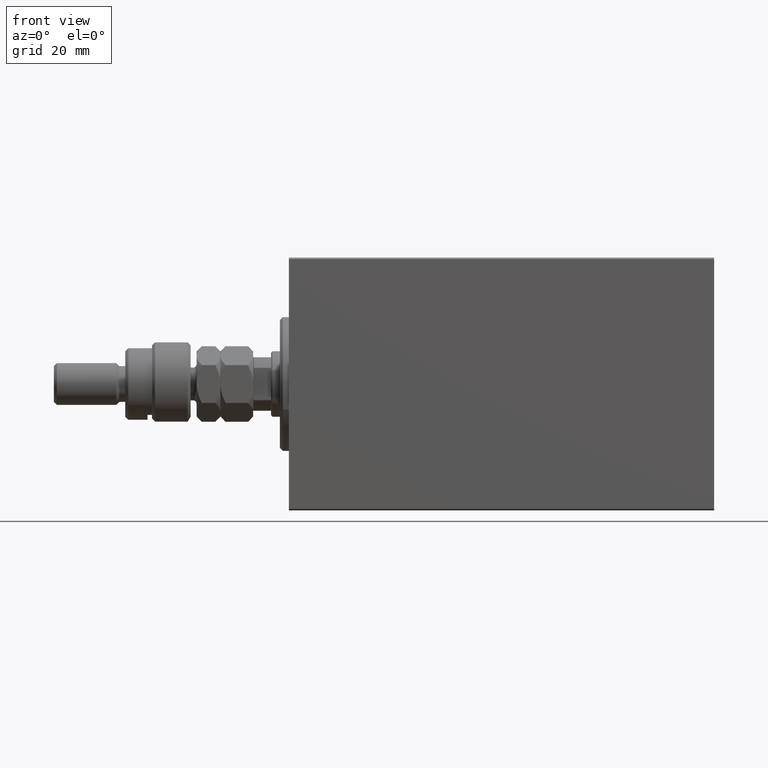
[diagram: clean part render]
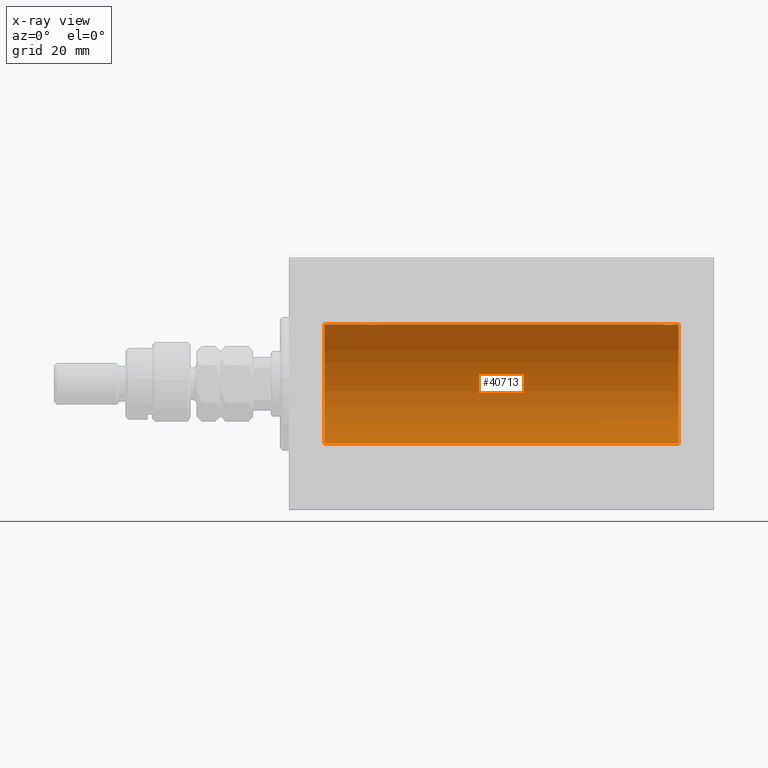
[diagram: x-ray — body ghosted, one internal face saturated and labeled with its STEP entity id]
A machine part, front view, then the same camera in x-ray: the body is ghosted and one INTERNAL B-rep face — a face not visible from any outside direction — is saturated and labeled: STEP entity #40713.
In plain terms, the highlighted cylindrical surface (partial cylindrical patch) has radius 20 mm, axis along (-1, -0, -0).
Its self-contained STEP definition (entity closure, byte-faithful):
#255 = AXIS2_PLACEMENT_3D ( 'NONE', #19203, #26536, #41206 ) ;
#351 = CARTESIAN_POINT ( 'NONE',  ( 129.0905973345755626, 1.219458756546266898, 19.96308513509966787 ) ) ;
#580 = CARTESIAN_POINT ( 'NONE',  ( 126.9810052581388788, 1.935912154109689531, 19.90610216711451130 ) ) ;
#694 = CARTESIAN_POINT ( 'NONE',  ( 26.56426851132708222, 0.5196544277756667274, 19.99365919015135873 ) ) ;
#822 = CARTESIAN_POINT ( 'NONE',  ( 129.5000000000000000, 6.438096668033870730E-15, 20.00000000000000000 ) ) ;
#3084 = CARTESIAN_POINT ( 'NONE',  ( 11.99999999999999645, 0.000000000000000000, 20.00000000000000000 ) ) ;
#3136 = VECTOR ( 'NONE', #40217, 1000.000000000000000 ) ;
#4014 = CARTESIAN_POINT ( 'NONE',  ( 28.76180153897438174, 1.999905101582716727, 19.89975827978156531 ) ) ;
#4127 = CARTESIAN_POINT ( 'NONE',  ( 127.2375858217999820, 1.987020435121064965, 19.90106552791689154 ) ) ;
#4219 = B_SPLINE_CURVE_WITH_KNOTS ( 'NONE', 3,
 ( #14451, #31985, #28431, #28897, #43330, #45949, #26023, #22248, #39998, #29579, #26262, #29815, #4014, #18698, #40228, #26500, #40468, #18934, #44256, #33129, #11579, #14676, #12056, #32675, #40932, #4476, #694, #11821, #8505, #29116 ),
 .UNSPECIFIED., .F., .F.,
 ( 4, 2, 2, 2, 2, 2, 2, 2, 2, 2, 2, 2, 2, 2, 4 ),
 ( 1.491064056086547960E-18, 0.0003910512220831125949, 0.0007821024441662236719, 0.001173153666249334695, 0.001564204888332445826, 0.002346307332498667655, 0.003128409776664889917, 0.003519460998748006036, 0.003910512220831123022, 0.004301563442914238707, 0.004692614664997354391, 0.005083665887080470944, 0.005474717109163585761, 0.005865768331246702313, 0.006256819553329818866 ),
 .UNSPECIFIED. ) ;
#4476 = CARTESIAN_POINT ( 'NONE',  ( 26.60210312641135033, 0.6443418861413088283, 19.98998539619404724 ) ) ;
#4836 = CARTESIAN_POINT ( 'NONE',  ( 126.6140381054416366, 1.797847595792759323, 19.91909332229798224 ) ) ;
#4846 = CARTESIAN_POINT ( 'NONE',  ( 131.0000000000000000, 0.000000000000000000, 20.00000000000000000 ) ) ;
#5313 = CARTESIAN_POINT ( 'NONE',  ( 125.5000000000000000, -1.553188236289650144E-23, 20.00000000000000000 ) ) ;
#6888 = CARTESIAN_POINT ( 'NONE',  ( 131.0000000000000000, 2.449293598294706513E-15, -20.00000000000000000 ) ) ;
#7386 = CARTESIAN_POINT ( 'NONE',  ( 11.99999999999999645, 2.449293598294706513E-15, -20.00000000000000000 ) ) ;
#7461 = VERTEX_POINT ( 'NONE', #17296 ) ;
#7899 = EDGE_CURVE ( 'NONE', #8626, #7461, #40796, .T. ) ;
#7919 = CARTESIAN_POINT ( 'NONE',  ( 125.9099293231032419, 1.220099331833881973, 19.96304379627741099 ) ) ;
#8277 = VERTEX_POINT ( 'NONE', #33167 ) ;
#8505 = CARTESIAN_POINT ( 'NONE',  ( 26.50000000000000711, 0.1305706983324430859, 20.00000000000000355 ) ) ;
#8626 = VERTEX_POINT ( 'NONE', #10128 ) ;
#9511 = VECTOR ( 'NONE', #29442, 1000.000000000000000 ) ;
#10128 = CARTESIAN_POINT ( 'NONE',  ( 125.5000000000000000, -1.553188236289650144E-23, 20.00000000000000000 ) ) ;
#10279 = EDGE_CURVE ( 'NONE', #15298, #8626, #26328, .T. ) ;
#11007 = CARTESIAN_POINT ( 'NONE',  ( 129.4999999999999432, 0.1322335637814731624, 19.99999999999999645 ) ) ;
#11236 = CARTESIAN_POINT ( 'NONE',  ( 129.2357636512789725, 1.002099838626312023, 19.97517568592526516 ) ) ;
#11436 = ORIENTED_EDGE ( 'NONE', *, *, #34342, .T. ) ;
#11579 = CARTESIAN_POINT ( 'NONE',  ( 27.17939834916166575, 1.507796451871720844, 19.94330239452387943 ) ) ;
#11821 = CARTESIAN_POINT ( 'NONE',  ( 26.51308707988552982, 0.2631998640366418063, 19.99867931558985745 ) ) ;
#11934 = CARTESIAN_POINT ( 'NONE',  ( 128.7295011223063170, 1.598854313793174997, 19.93684595445884611 ) ) ;
#12056 = CARTESIAN_POINT ( 'NONE',  ( 26.90992932310326680, 1.220099331833893963, 19.96304379627741099 ) ) ;
#14451 = CARTESIAN_POINT ( 'NONE',  ( 30.50000000000000000, -9.453669475664189070E-16, 20.00000000000000000 ) ) ;
#14676 = CARTESIAN_POINT ( 'NONE',  ( 26.99261358456011806, 1.321069663197663724, 19.95654117037012298 ) ) ;
#15031 = CARTESIAN_POINT ( 'NONE',  ( 125.9926135845601323, 1.321069663197669497, 19.95654117037011943 ) ) ;
#15298 = VERTEX_POINT ( 'NONE', #36654 ) ;
#17296 = CARTESIAN_POINT ( 'NONE',  ( 30.50000000000000000, -9.453669475664189070E-16, 20.00000000000000000 ) ) ;
#18356 = CARTESIAN_POINT ( 'NONE',  ( 129.4361522838333087, 0.5179893069484673429, 19.99370013622814923 ) ) ;
#18584 = CARTESIAN_POINT ( 'NONE',  ( 126.4970277321504568, 1.735228749583813679, 19.92471474456649005 ) ) ;
#18698 = CARTESIAN_POINT ( 'NONE',  ( 28.37018818709294266, 2.000047251570880924, 19.89974399317116038 ) ) ;
#18934 = CARTESIAN_POINT ( 'NONE',  ( 27.61403810544162951, 1.797847595792757769, 19.91909332229799290 ) ) ;
#19013 = VERTEX_POINT ( 'NONE', #19136 ) ;
#19136 = CARTESIAN_POINT ( 'NONE',  ( 131.0000000000000000, 0.000000000000000000, 20.00000000000000000 ) ) ;
#19153 = DIRECTION ( 'NONE',  ( -1.000000000000000000, -0.000000000000000000, -0.000000000000000000 ) ) ;
#19203 = CARTESIAN_POINT ( 'NONE',  ( 131.0000000000000000, 0.000000000000000000, 0.000000000000000000 ) ) ;
#20741 = VECTOR ( 'NONE', #19153, 1000.000000000000000 ) ;
#21556 = AXIS2_PLACEMENT_3D ( 'NONE', #28434, #43793, #42872 ) ;
#22130 = CARTESIAN_POINT ( 'NONE',  ( 128.0251390845499770, 1.947330458682945409, 19.90522393307485061 ) ) ;
#22248 = CARTESIAN_POINT ( 'NONE',  ( 30.09059733457551999, 1.219458756546268674, 19.96308513509966787 ) ) ;
#22367 = CARTESIAN_POINT ( 'NONE',  ( 126.8562886936015275, 1.898109641280497417, 19.90978941500366872 ) ) ;
#22598 = CARTESIAN_POINT ( 'NONE',  ( 127.3701881870929213, 2.000047251570877371, 19.89974399317116038 ) ) ;
#22703 = LINE ( 'NONE', #37130, #20741 ) ;
#22837 = CARTESIAN_POINT ( 'NONE',  ( 125.6021031264113503, 0.6443418861413128251, 19.98998539619404724 ) ) ;
#22847 = LINE ( 'NONE', #4846, #44019 ) ;
#22982 = CARTESIAN_POINT ( 'NONE',  ( 11.99999999999999645, 0.000000000000000000, 0.000000000000000000 ) ) ;
#23313 = DIRECTION ( 'NONE',  ( -1.000000000000000000, -0.000000000000000000, -0.000000000000000000 ) ) ;
#23987 = ORIENTED_EDGE ( 'NONE', *, *, #28851, .T. ) ;
#24101 = VERTEX_POINT ( 'NONE', #6888 ) ;
#25683 = CARTESIAN_POINT ( 'NONE',  ( 129.0061577038071334, 1.322305185229299740, 19.95645382900617548 ) ) ;
#26023 = CARTESIAN_POINT ( 'NONE',  ( 30.23576365127895471, 1.002099838626313133, 19.97517568592526516 ) ) ;
#26262 = CARTESIAN_POINT ( 'NONE',  ( 29.50645759073829666, 1.747830109444738822, 19.92373272380676852 ) ) ;
#26328 = B_SPLINE_CURVE_WITH_KNOTS ( 'NONE', 3,
 ( #822, #11007, #39888, #18356, #32784, #44374, #11236, #351, #25683, #11934, #43912, #22130, #29700, #22598, #4127, #580, #22367, #4836, #18584, #26379, #33020, #15031, #7919, #36801, #40818, #22837, #37268, #45547, #45082, #5313 ),
 .UNSPECIFIED., .F., .F.,
 ( 4, 2, 2, 2, 2, 2, 2, 2, 2, 2, 2, 2, 2, 2, 4 ),
 ( 6.256030733202064911E-18, 0.0003910512220831412178, 0.0007821024441662762557, 0.001173153666249411239, 0.001564204888332546223, 0.002346307332498815974, 0.003128409776665085941, 0.003519460998748179508, 0.003910512220831273075, 0.004301563442914366209, 0.004692614664997459342, 0.005083665887080552476, 0.005474717109163646477, 0.005865768331246739610, 0.006256819553329832743 ),
 .UNSPECIFIED. ) ;
#26379 = CARTESIAN_POINT ( 'NONE',  ( 126.2803972465025879, 1.590453176650897360, 19.93679350243184700 ) ) ;
#26398 = ORIENTED_EDGE ( 'NONE', *, *, #31620, .F. ) ;
#26500 = CARTESIAN_POINT ( 'NONE',  ( 27.98100525813890371, 1.935912154109691308, 19.90610216711450775 ) ) ;
#26536 = DIRECTION ( 'NONE',  ( -1.000000000000000000, -0.000000000000000000, -0.000000000000000000 ) ) ;
#26582 = VERTEX_POINT ( 'NONE', #7386 ) ;
#26591 = ORIENTED_EDGE ( 'NONE', *, *, #44118, .F. ) ;
#27413 = ORIENTED_EDGE ( 'NONE', *, *, #7899, .T. ) ;
#28431 = CARTESIAN_POINT ( 'NONE',  ( 30.48701494615325203, 0.2622407139811110399, 19.99868965376114716 ) ) ;
#28434 = CARTESIAN_POINT ( 'NONE',  ( 131.0000000000000000, 0.000000000000000000, 0.000000000000000000 ) ) ;
#28851 = EDGE_CURVE ( 'NONE', #43118, #26582, #42343, .T. ) ;
#28897 = CARTESIAN_POINT ( 'NONE',  ( 30.43615228383326610, 0.5179893069484617918, 19.99370013622814213 ) ) ;
#29116 = CARTESIAN_POINT ( 'NONE',  ( 26.50000000000000355, -1.552596590610734385E-23, 20.00000000000000000 ) ) ;
#29430 = ORIENTED_EDGE ( 'NONE', *, *, #42392, .T. ) ;
#29442 = DIRECTION ( 'NONE',  ( -1.000000000000000000, -0.000000000000000000, -0.000000000000000000 ) ) ;
#29579 = CARTESIAN_POINT ( 'NONE',  ( 29.72950112230633124, 1.598854313793179660, 19.93684595445884256 ) ) ;
#29700 = CARTESIAN_POINT ( 'NONE',  ( 127.7618015389743960, 1.999905101582715172, 19.89975827978156886 ) ) ;
#29771 = EDGE_LOOP ( 'NONE', ( #26398, #26591, #29430, #42201, #27413, #43805, #11436, #23987 ) ) ;
#29815 = CARTESIAN_POINT ( 'NONE',  ( 29.02513908454999125, 1.947330458682948739, 19.90522393307485061 ) ) ;
#29913 = CARTESIAN_POINT ( 'NONE',  ( 131.0000000000000000, 0.000000000000000000, 20.00000000000000000 ) ) ;
#30283 = CARTESIAN_POINT ( 'NONE',  ( 131.0000000000000000, 2.449293598294706513E-15, -20.00000000000000000 ) ) ;
#31620 = EDGE_CURVE ( 'NONE', #24101, #26582, #44945, .T. ) ;
#31985 = CARTESIAN_POINT ( 'NONE',  ( 30.49999999999998934, 0.1322335637814726905, 19.99999999999999645 ) ) ;
#32675 = CARTESIAN_POINT ( 'NONE',  ( 26.76510545398016205, 1.003547732426802286, 19.97510079925437765 ) ) ;
#32784 = CARTESIAN_POINT ( 'NONE',  ( 129.3976511316607798, 0.6450624715427597522, 19.98996196681220994 ) ) ;
#33020 = CARTESIAN_POINT ( 'NONE',  ( 126.1793983491617013, 1.507796451871725063, 19.94330239452387588 ) ) ;
#33129 = CARTESIAN_POINT ( 'NONE',  ( 27.28039724650257014, 1.590453176650910017, 19.93679350243183990 ) ) ;
#33167 = CARTESIAN_POINT ( 'NONE',  ( 26.50000000000000355, -1.552596590610734385E-23, 20.00000000000000000 ) ) ;
#34342 = EDGE_CURVE ( 'NONE', #8277, #43118, #22847, .T. ) ;
#36654 = CARTESIAN_POINT ( 'NONE',  ( 129.5000000000000000, 6.438096668033870730E-15, 20.00000000000000000 ) ) ;
#36801 = CARTESIAN_POINT ( 'NONE',  ( 125.7651054539801407, 1.003547732426790073, 19.97510079925437410 ) ) ;
#36820 = EDGE_CURVE ( 'NONE', #7461, #8277, #4219, .T. ) ;
#37130 = CARTESIAN_POINT ( 'NONE',  ( 131.0000000000000000, 0.000000000000000000, 20.00000000000000000 ) ) ;
#37268 = CARTESIAN_POINT ( 'NONE',  ( 125.5642685113271000, 0.5196544277756655061, 19.99365919015135518 ) ) ;
#37422 = FACE_OUTER_BOUND ( 'NONE', #29771, .T. ) ;
#39888 = CARTESIAN_POINT ( 'NONE',  ( 129.4870149461532378, 0.2622407139811161469, 19.99868965376115071 ) ) ;
#39998 = CARTESIAN_POINT ( 'NONE',  ( 30.00615770380712988, 1.322305185229305735, 19.95645382900617548 ) ) ;
#40031 = DIRECTION ( 'NONE',  ( 0.000000000000000000, 0.000000000000000000, 1.000000000000000000 ) ) ;
#40066 = AXIS2_PLACEMENT_3D ( 'NONE', #22982, #40498, #40031 ) ;
#40217 = DIRECTION ( 'NONE',  ( -1.000000000000000000, -0.000000000000000000, -0.000000000000000000 ) ) ;
#40228 = CARTESIAN_POINT ( 'NONE',  ( 28.23758582179998911, 1.987020435121066742, 19.90106552791689509 ) ) ;
#40468 = CARTESIAN_POINT ( 'NONE',  ( 27.85628869360149906, 1.898109641280498083, 19.90978941500367583 ) ) ;
#40498 = DIRECTION ( 'NONE',  ( -1.000000000000000000, 0.000000000000000000, 0.000000000000000000 ) ) ;
#40503 = CYLINDRICAL_SURFACE ( 'NONE', #255, 20.00000000000000000 ) ;
#40713 = ADVANCED_FACE ( 'NONE', ( #37422 ), #40503, .F. ) ;
#40796 = LINE ( 'NONE', #29913, #9511 ) ;
#40818 = CARTESIAN_POINT ( 'NONE',  ( 125.7024609887283901, 0.8865903856744312694, 19.98070694681039328 ) ) ;
#40932 = CARTESIAN_POINT ( 'NONE',  ( 26.70246098872837592, 0.8865903856744279388, 19.98070694681038972 ) ) ;
#41206 = DIRECTION ( 'NONE',  ( 0.000000000000000000, 0.000000000000000000, 1.000000000000000000 ) ) ;
#42201 = ORIENTED_EDGE ( 'NONE', *, *, #10279, .T. ) ;
#42343 = CIRCLE ( 'NONE', #40066, 20.00000000000000000 ) ;
#42392 = EDGE_CURVE ( 'NONE', #19013, #15298, #22703, .T. ) ;
#42872 = DIRECTION ( 'NONE',  ( 0.000000000000000000, 0.000000000000000000, 1.000000000000000000 ) ) ;
#43118 = VERTEX_POINT ( 'NONE', #3084 ) ;
#43330 = CARTESIAN_POINT ( 'NONE',  ( 30.39765113166074073, 0.6450624715427593081, 19.98996196681220283 ) ) ;
#43479 = CIRCLE ( 'NONE', #21556, 20.00000000000000000 ) ;
#43793 = DIRECTION ( 'NONE',  ( -1.000000000000000000, 0.000000000000000000, 0.000000000000000000 ) ) ;
#43805 = ORIENTED_EDGE ( 'NONE', *, *, #36820, .T. ) ;
#43912 = CARTESIAN_POINT ( 'NONE',  ( 128.5064575907383357, 1.747830109444734159, 19.92373272380677207 ) ) ;
#44019 = VECTOR ( 'NONE', #23313, 1000.000000000000000 ) ;
#44118 = EDGE_CURVE ( 'NONE', #19013, #24101, #43479, .T. ) ;
#44256 = CARTESIAN_POINT ( 'NONE',  ( 27.49702773215046392, 1.735228749583825225, 19.92471474456649005 ) ) ;
#44374 = CARTESIAN_POINT ( 'NONE',  ( 129.2972134305669556, 0.8872481584516725972, 19.98067755938510714 ) ) ;
#44945 = LINE ( 'NONE', #30283, #3136 ) ;
#45082 = CARTESIAN_POINT ( 'NONE',  ( 125.4999999999999432, 0.1305706983324443071, 19.99999999999999645 ) ) ;
#45547 = CARTESIAN_POINT ( 'NONE',  ( 125.5130870798855369, 0.2631998640366421394, 19.99867931558985745 ) ) ;
#45949 = CARTESIAN_POINT ( 'NONE',  ( 30.29721343056696270, 0.8872481584516728192, 19.98067755938509293 ) ) ;